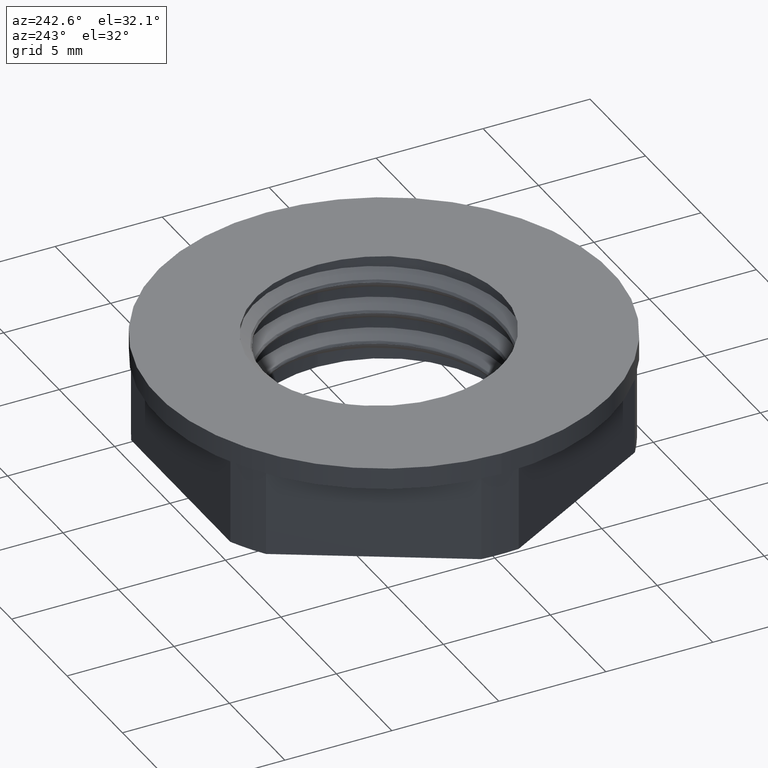
[diagram: clean part render]
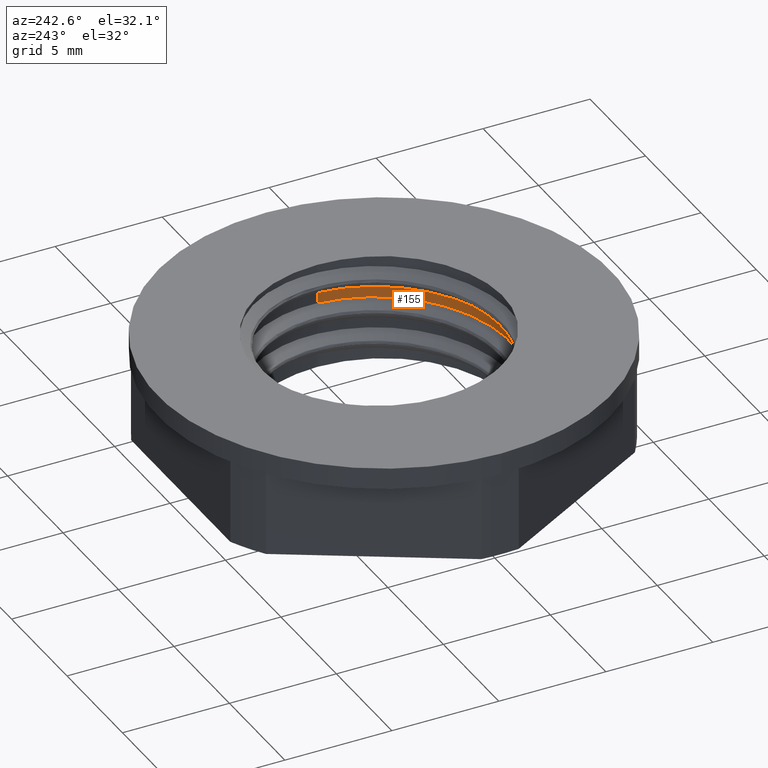
[diagram: same view with one face highlighted and labeled with its STEP entity id]
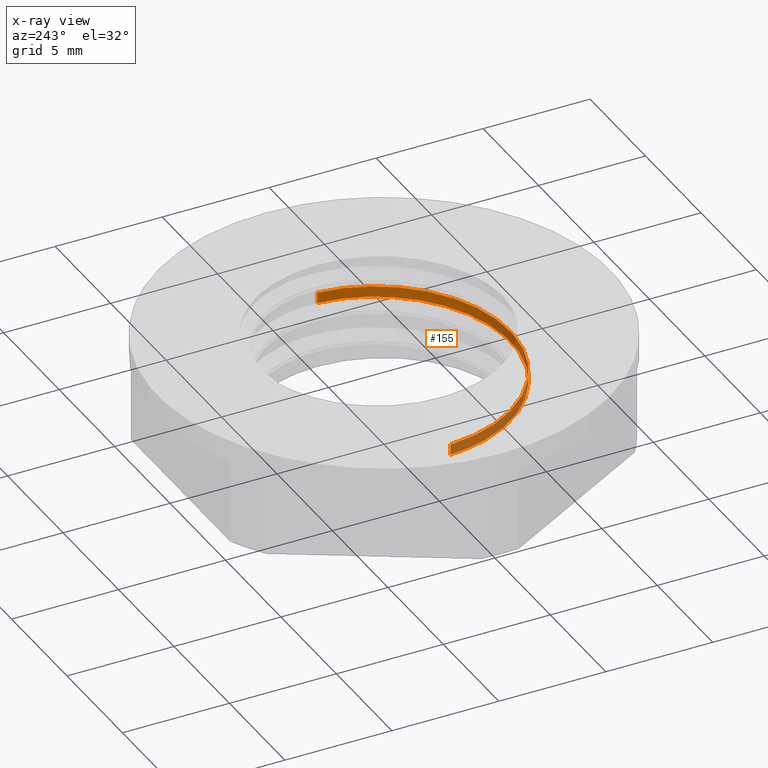
[diagram: x-ray of the same camera — body ghosted, the highlighted face saturated]
A machine part, auxiliary view. The second image highlights one B-rep face of the part: STEP entity #155.
The next image is the same camera in x-ray: the body ghosted, the highlighted face saturated — about 32% of this face is hidden behind the body in this view.
In plain terms, the highlighted cylindrical surface (partial cylindrical patch) has radius 6 mm, axis along (-0, -0, -1).
Its self-contained STEP definition (entity closure, byte-faithful):
#30 = VECTOR ( 'NONE', #1652, 1000.000000000000000 ) ;
#35 = VECTOR ( 'NONE', #1651, 1000.000000000000000 ) ;
#42 = AXIS2_PLACEMENT_3D ( 'NONE', #1617, #1606, #1580 ) ;
#155 = ADVANCED_FACE ( 'NONE', ( #1544 ), #1610, .F. ) ;
#156 = EDGE_CURVE ( 'NONE', #840, #837, #2605, .T. ) ;
#163 = EDGE_CURVE ( 'NONE', #836, #845, #2612, .T. ) ;
#164 = EDGE_CURVE ( 'NONE', #845, #840, #1645, .T. ) ;
#168 = EDGE_CURVE ( 'NONE', #836, #837, #1674, .T. ) ;
#269 = EDGE_LOOP ( 'NONE', ( #996, #1010, #1012, #994 ) ) ;
#836 = VERTEX_POINT ( 'NONE', #1221 ) ;
#837 = VERTEX_POINT ( 'NONE', #1269 ) ;
#840 = VERTEX_POINT ( 'NONE', #1225 ) ;
#845 = VERTEX_POINT ( 'NONE', #1236 ) ;
#994 = ORIENTED_EDGE ( 'NONE', *, *, #168, .F. ) ;
#996 = ORIENTED_EDGE ( 'NONE', *, *, #163, .T. ) ;
#1010 = ORIENTED_EDGE ( 'NONE', *, *, #164, .T. ) ;
#1012 = ORIENTED_EDGE ( 'NONE', *, *, #156, .T. ) ;
#1221 = CARTESIAN_POINT ( 'NONE',  ( -6.000000000000001800, -3.254602896800970600E-015, 2.876149007339531000 ) ) ;
#1225 = CARTESIAN_POINT ( 'NONE',  ( 6.000000000000001800, -3.703513641187310800E-015, 3.125303948206179100 ) ) ;
#1236 = CARTESIAN_POINT ( 'NONE',  ( 6.000000000000000900, 1.122276860965852100E-016, 3.626149007339530600 ) ) ;
#1269 = CARTESIAN_POINT ( 'NONE',  ( -6.000000000000001800, 3.815741327283896400E-015, 2.375303948206180400 ) ) ;
#1544 = FACE_OUTER_BOUND ( 'NONE', #269, .T. ) ;
#1577 = CARTESIAN_POINT ( 'NONE',  ( -5.795591850283278400, -1.552776579205799300, 2.937916857754697900 ) ) ;
#1578 = CARTESIAN_POINT ( 'NONE',  ( -5.152410731840936000, -3.953389325572113300, 3.031666857754697900 ) ) ;
#1580 = DIRECTION ( 'NONE',  ( -1.000000000000000000, 0.0000000000000000000, 0.0000000000000000000 ) ) ;
#1581 = CARTESIAN_POINT ( 'NONE',  ( -0.8478361671605156900, -6.438772968725622500, 2.718321798621347300 ) ) ;
#1586 = CARTESIAN_POINT ( 'NONE',  ( -6.000000000000001800, -3.254602896800970600E-015, 2.876149007339531000 ) ) ;
#1587 = CARTESIAN_POINT ( 'NONE',  ( -6.000000000000000000, -0.7898424761968253500, 2.407277292087398400 ) ) ;
#1588 = CARTESIAN_POINT ( 'NONE',  ( -6.000000000000001800, 3.815741327283896400E-015, 2.375303948206180400 ) ) ;
#1592 = CARTESIAN_POINT ( 'NONE',  ( -6.000000000000000000, -0.7898424761968236800, 2.908122351220749000 ) ) ;
#1596 = CARTESIAN_POINT ( 'NONE',  ( -3.000123449500725400, -5.196081147148867700, 3.125416857754697900 ) ) ;
#1600 = CARTESIAN_POINT ( 'NONE',  ( 5.196081147148866800, -3.000123449500725800, 2.999571798621345900 ) ) ;
#1601 = CARTESIAN_POINT ( 'NONE',  ( 6.000000000000001800, -3.703513641187310800E-015, 3.125303948206179100 ) ) ;
#1602 = CARTESIAN_POINT ( 'NONE',  ( 5.999999999999997300, -1.607771546170722900, 3.060220296620766300 ) ) ;
#1603 = CARTESIAN_POINT ( 'NONE',  ( 1.552776579205799300, -5.795591850283278400, 2.812071798621346400 ) ) ;
#1604 = CARTESIAN_POINT ( 'NONE',  ( -3.000123449500725800, -5.196081147148867700, 2.624571798621346400 ) ) ;
#1605 = CARTESIAN_POINT ( 'NONE',  ( 3.953389325572111500, -5.152410731840936900, 2.905821798621345900 ) ) ;
#1606 = DIRECTION ( 'NONE',  ( -0.0000000000000000000, -0.0000000000000000000, -1.000000000000000000 ) ) ;
#1607 = CARTESIAN_POINT ( 'NONE',  ( -5.152410731840936000, -3.953389325572113300, 2.530821798621346800 ) ) ;
#1610 = CYLINDRICAL_SURFACE ( 'NONE', #42, 6.000000000000000900 ) ;
#1611 = CARTESIAN_POINT ( 'NONE',  ( -5.795591850283278400, -1.552776579205799700, 2.437071798621346800 ) ) ;
#1617 = CARTESIAN_POINT ( 'NONE',  ( 0.0000000000000000000, 0.0000000000000000000, 10.00000000000000000 ) ) ;
#1622 = CARTESIAN_POINT ( 'NONE',  ( -0.8478361671605156900, -6.438772968725622500, 3.219166857754697900 ) ) ;
#1632 = CARTESIAN_POINT ( 'NONE',  ( 6.000000000000000900, 1.122276860965852100E-016, 3.626149007339530600 ) ) ;
#1633 = CARTESIAN_POINT ( 'NONE',  ( 1.552776579205799300, -5.795591850283278400, 3.312916857754697900 ) ) ;
#1634 = CARTESIAN_POINT ( 'NONE',  ( 3.953389325572111500, -5.152410731840936900, 3.406666857754697000 ) ) ;
#1635 = CARTESIAN_POINT ( 'NONE',  ( 5.196081147148865900, -3.000123449500725400, 3.500416857754697500 ) ) ;
#1645 = LINE ( 'NONE', #1649, #30 ) ;
#1649 = CARTESIAN_POINT ( 'NONE',  ( 6.000000000000000900, 7.347880794884120700E-016, 10.00000000000000000 ) ) ;
#1651 = DIRECTION ( 'NONE',  ( -0.0000000000000000000, -0.0000000000000000000, -1.000000000000000000 ) ) ;
#1652 = DIRECTION ( 'NONE',  ( -0.0000000000000000000, -0.0000000000000000000, -1.000000000000000000 ) ) ;
#1654 = CARTESIAN_POINT ( 'NONE',  ( 5.999999999999999100, -1.607771546170716000, 3.561065355754117400 ) ) ;
#1668 = CARTESIAN_POINT ( 'NONE',  ( -6.000000000000000900, 0.0000000000000000000, 10.00000000000000000 ) ) ;
#1674 = LINE ( 'NONE', #1668, #35 ) ;
#2605 =( BOUNDED_CURVE ( )  B_SPLINE_CURVE ( 2, ( #1601, #1602, #1600, #1605, #1603, #1581, #1604, #1607, #1611, #1587, #1588 ),
 .UNSPECIFIED., .F., .F. ) 
 B_SPLINE_CURVE_WITH_KNOTS ( ( 3, 2, 2, 2, 2, 3 ),
 ( 0.6333803848062007400, 0.6500000000000000200, 0.6750000000000000400, 0.6999999999999999600, 0.7249999999999999800, 0.7333803848062006000 ),
 .UNSPECIFIED. ) 
 CURVE ( )  GEOMETRIC_REPRESENTATION_ITEM ( )  RATIONAL_B_SPLINE_CURVE ( ( 0.9660737115727575700, 0.9493962848786190500, 1.000000000000000000, 0.9238795325112867400, 1.000000000000000000, 0.9238795325112867400, 1.000000000000000000, 0.9238795325112867400, 1.000000000000000000, 0.9744832476326679100, 0.9660737115727577900 ) ) 
 REPRESENTATION_ITEM ( '' )  );
#2612 =( BOUNDED_CURVE ( )  B_SPLINE_CURVE ( 2, ( #1586, #1592, #1577, #1578, #1596, #1622, #1633, #1634, #1635, #1654, #1632 ),
 .UNSPECIFIED., .F., .T. ) 
 B_SPLINE_CURVE_WITH_KNOTS ( ( 3, 2, 2, 2, 2, 3 ),
 ( 0.4666196151937993500, 0.4749999999999999800, 0.5000000000000000000, 0.5250000000000000200, 0.5500000000000000400, 0.5666196151937993300 ),
 .UNSPECIFIED. ) 
 CURVE ( )  GEOMETRIC_REPRESENTATION_ITEM ( )  RATIONAL_B_SPLINE_CURVE ( ( 0.9660737115727577900, 0.9744832476326679100, 1.000000000000000000, 0.9238795325112867400, 1.000000000000000000, 0.9238795325112867400, 1.000000000000000000, 0.9238795325112867400, 1.000000000000000000, 0.9493962848786189300, 0.9660737115727577900 ) ) 
 REPRESENTATION_ITEM ( '' )  );